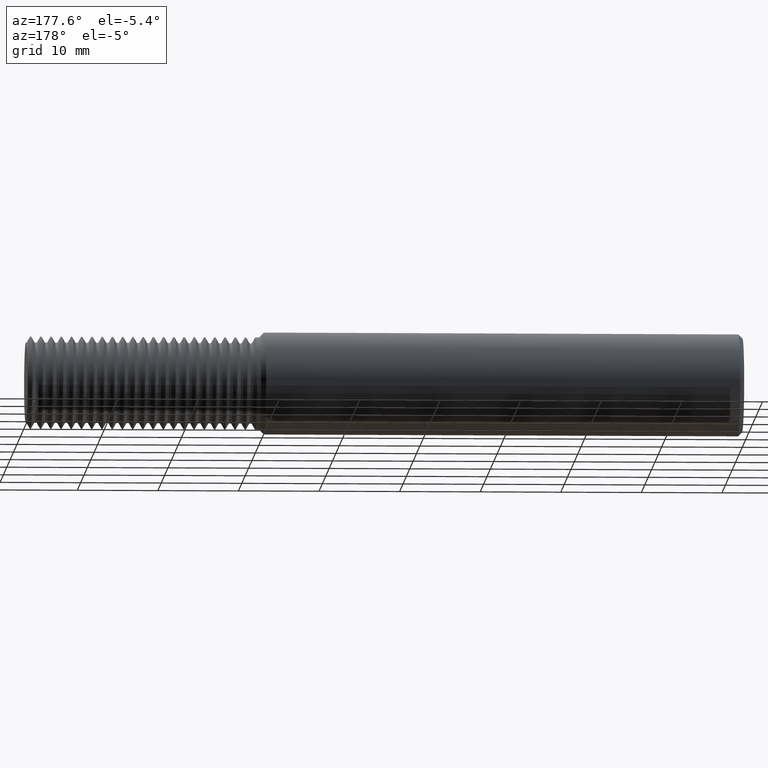
[diagram: clean part render]
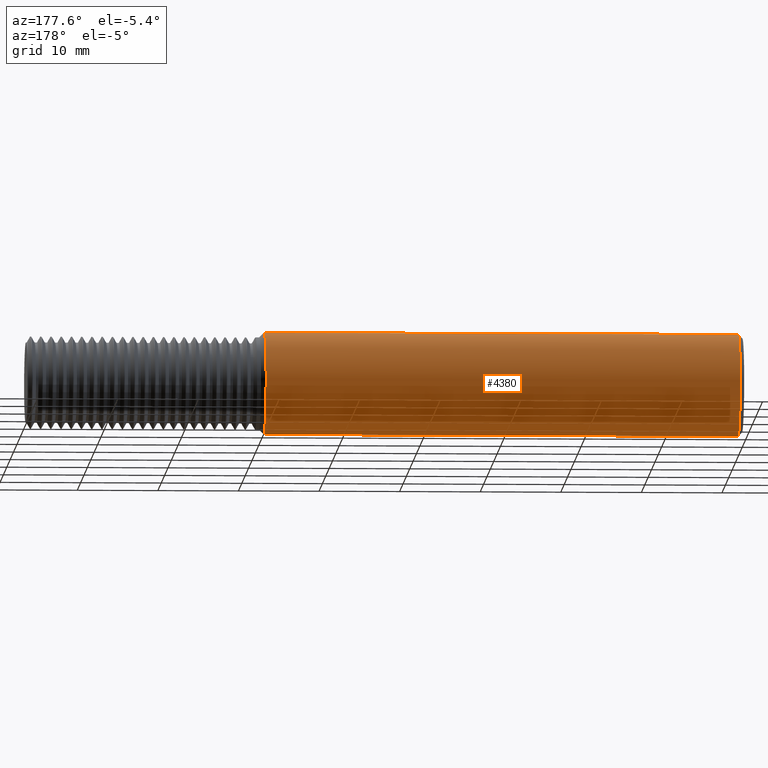
[diagram: same view with one face highlighted and labeled with its STEP entity id]
A machine part, auxiliary view. The second image highlights one B-rep face of the part: STEP entity #4380.
In plain terms, the highlighted cylindrical surface (partial cylindrical patch) has radius 6.3462 mm, axis along (-1, -0, -0).
Its self-contained STEP definition (entity closure, byte-faithful):
#225 = VERTEX_POINT ( 'NONE', #1671 ) ;
#322 = AXIS2_PLACEMENT_3D ( 'NONE', #2202, #382, #1512 ) ;
#382 = DIRECTION ( 'NONE',  ( -1.000000000000000000, -0.000000000000000000, -0.000000000000000000 ) ) ;
#636 = EDGE_CURVE ( 'NONE', #3091, #3857, #1433, .T. ) ;
#674 = DIRECTION ( 'NONE',  ( 0.000000000000000000, 0.000000000000000000, -1.000000000000000000 ) ) ;
#699 = CYLINDRICAL_SURFACE ( 'NONE', #322, 0.2498499999999999888 ) ;
#752 = VERTEX_POINT ( 'NONE', #2893 ) ;
#855 = AXIS2_PLACEMENT_3D ( 'NONE', #4724, #3256, #674 ) ;
#1160 = EDGE_CURVE ( 'NONE', #3857, #225, #4353, .T. ) ;
#1399 = CARTESIAN_POINT ( 'NONE',  ( 2.336149999999999949, 3.059780027669661931E-17, -0.2498499999999999888 ) ) ;
#1433 = CIRCLE ( 'NONE', #1887, 0.2498499999999999888 ) ;
#1512 = DIRECTION ( 'NONE',  ( 0.000000000000000000, 0.000000000000000000, 1.000000000000000000 ) ) ;
#1547 = ORIENTED_EDGE ( 'NONE', *, *, #3399, .T. ) ;
#1595 = CARTESIAN_POINT ( 'NONE',  ( 2.336149999999999949, 0.000000000000000000, 0.000000000000000000 ) ) ;
#1623 = VECTOR ( 'NONE', #1783, 39.37007874015748143 ) ;
#1671 = CARTESIAN_POINT ( 'NONE',  ( 0.02000000000000009409, 0.000000000000000000, -0.2498499999999999888 ) ) ;
#1783 = DIRECTION ( 'NONE',  ( -1.000000000000000000, -0.000000000000000000, -0.000000000000000000 ) ) ;
#1847 = FACE_OUTER_BOUND ( 'NONE', #4660, .T. ) ;
#1887 = AXIS2_PLACEMENT_3D ( 'NONE', #1595, #4572, #4261 ) ;
#1922 = DIRECTION ( 'NONE',  ( -1.000000000000000000, -0.000000000000000000, -0.000000000000000000 ) ) ;
#1946 = CIRCLE ( 'NONE', #855, 0.2498499999999999888 ) ;
#2202 = CARTESIAN_POINT ( 'NONE',  ( 0.000000000000000000, 0.000000000000000000, 0.000000000000000000 ) ) ;
#2703 = LINE ( 'NONE', #3779, #3030 ) ;
#2893 = CARTESIAN_POINT ( 'NONE',  ( 0.02000000000000009409, 3.059780027669661931E-17, 0.2498499999999999888 ) ) ;
#3030 = VECTOR ( 'NONE', #1922, 39.37007874015748143 ) ;
#3091 = VERTEX_POINT ( 'NONE', #3793 ) ;
#3256 = DIRECTION ( 'NONE',  ( 1.000000000000000000, 0.000000000000000000, 0.000000000000000000 ) ) ;
#3399 = EDGE_CURVE ( 'NONE', #225, #752, #1946, .T. ) ;
#3466 = ORIENTED_EDGE ( 'NONE', *, *, #4539, .F. ) ;
#3779 = CARTESIAN_POINT ( 'NONE',  ( 0.000000000000000000, 0.000000000000000000, 0.2498499999999999888 ) ) ;
#3793 = CARTESIAN_POINT ( 'NONE',  ( 2.336149999999999949, 0.000000000000000000, 0.2498499999999999888 ) ) ;
#3857 = VERTEX_POINT ( 'NONE', #1399 ) ;
#3984 = CARTESIAN_POINT ( 'NONE',  ( 0.000000000000000000, 3.059780027669661931E-17, -0.2498499999999999888 ) ) ;
#4204 = ORIENTED_EDGE ( 'NONE', *, *, #1160, .T. ) ;
#4261 = DIRECTION ( 'NONE',  ( 0.000000000000000000, 0.000000000000000000, 1.000000000000000000 ) ) ;
#4274 = ORIENTED_EDGE ( 'NONE', *, *, #636, .T. ) ;
#4353 = LINE ( 'NONE', #3984, #1623 ) ;
#4380 = ADVANCED_FACE ( 'NONE', ( #1847 ), #699, .T. ) ;
#4539 = EDGE_CURVE ( 'NONE', #3091, #752, #2703, .T. ) ;
#4572 = DIRECTION ( 'NONE',  ( -1.000000000000000000, -0.000000000000000000, -0.000000000000000000 ) ) ;
#4660 = EDGE_LOOP ( 'NONE', ( #4274, #4204, #1547, #3466 ) ) ;
#4724 = CARTESIAN_POINT ( 'NONE',  ( 0.02000000000000009409, 0.000000000000000000, 0.000000000000000000 ) ) ;